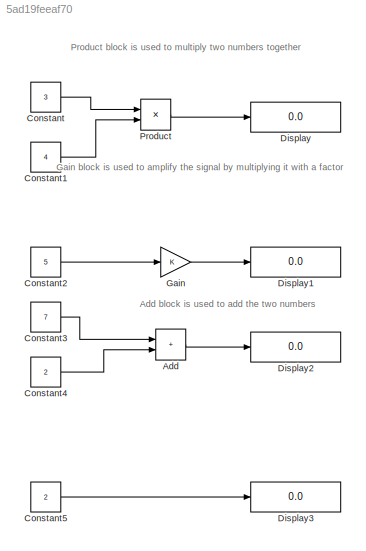
MODEL slx_5ad19feeaf70
KIND model
CONFIG AbsTol = auto
CONFIG EnableMultiTasking = off
CONFIG FixedStep = auto
CONFIG MaxStep = auto
CONFIG MinStep = auto
CONFIG RelTol = 1e-3
CONFIG SampleTimeConstraint = Unconstrained
CONFIG SolverName = VariableStepAuto
CONFIG StartTime = 0.0
CONFIG StopTime = 10.0
BLOCK [Sum] Add
  IconShape = rectangular
BLOCK [Constant] Constant
  Value = 3
BLOCK [Constant] Constant1
  Value = 4
BLOCK [Constant] Constant2
  Value = 5
BLOCK [Constant] Constant3
  Value = 7
BLOCK [Constant] Constant4
  Value = 2
BLOCK [Constant] Constant5
  Value = 2
BLOCK [Display] Display
  Decimation = 1
BLOCK [Display] Display1
  Decimation = 1
BLOCK [Display] Display2
  Decimation = 1
BLOCK [Display] Display3
  Decimation = 1
BLOCK [Gain] Gain
BLOCK [Product] Product
ANNOTATION (root): Add block is used to add the two numbers
ANNOTATION (root): Gain block is used to amplify the signal by multiplying it with a factor
ANNOTATION (root): Product block is used to multiply two numbers together
LINE Add:1 -> Display2:1
LINE Constant1:1 -> Product:2
LINE Constant2:1 -> Gain:1
LINE Constant3:1 -> Add:1
LINE Constant4:1 -> Add:2
LINE Constant5:1 -> Display3:1
LINE Constant:1 -> Product:1
LINE Gain:1 -> Display1:1
LINE Product:1 -> Display:1
